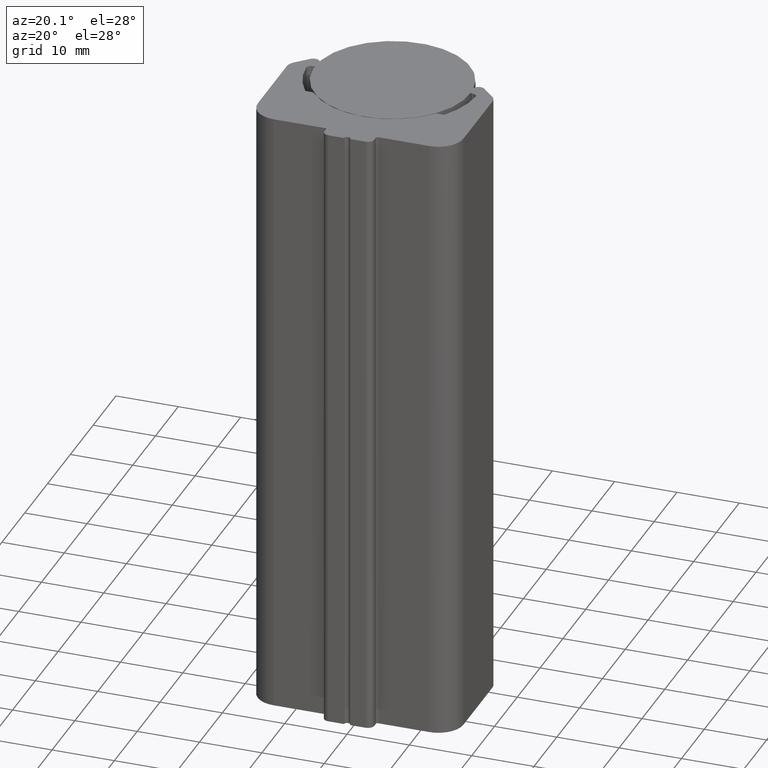
[diagram: clean part render]
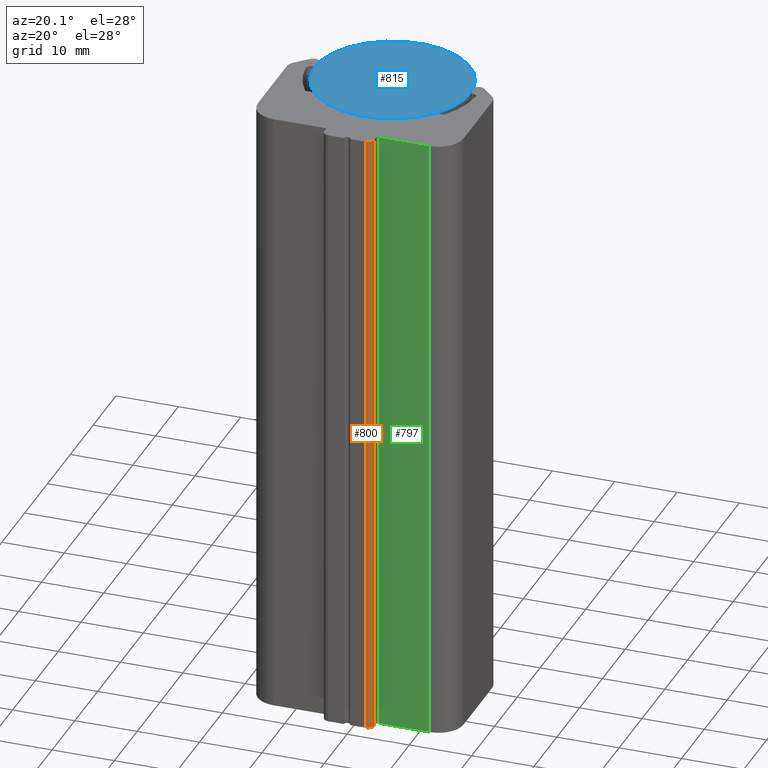
[diagram: same view with three faces highlighted in distinct colors, each labeled with its STEP entity id]
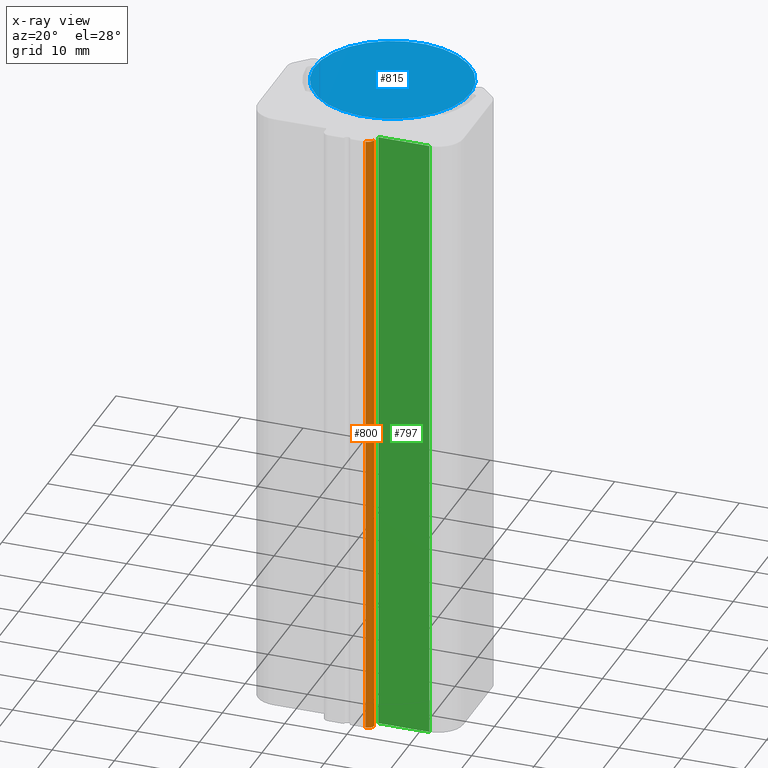
[diagram: x-ray of the same camera — body ghosted, the three highlighted faces saturated]
A machine part, auxiliary view with three faces highlighted in distinct colors.
The next image is the same camera in x-ray (body ghosted, the three faces saturated) — at least one of them is partly hidden behind the body in this view.
Their STEP definitions:

[orange] entity #800 — the highlighted cylindrical surface (edge-blend (fillet) strip) has radius 1 mm, axis along (0, 0, 1).
#43=CYLINDRICAL_SURFACE('',#947,1.);
#77=FACE_OUTER_BOUND('',#120,.T.);
#120=EDGE_LOOP('',(#661,#662,#663,#664));
#152=CIRCLE('',#899,1.);
#174=CIRCLE('',#948,1.);
#234=LINE('',#1417,#305);
#235=LINE('',#1421,#306);
#305=VECTOR('',#1160,10.);
#306=VECTOR('',#1165,10.);
#351=VERTEX_POINT('',#1289);
#352=VERTEX_POINT('',#1291);
#388=VERTEX_POINT('',#1415);
#389=VERTEX_POINT('',#1419);
#429=EDGE_CURVE('',#351,#352,#152,.T.);
#492=EDGE_CURVE('',#351,#388,#234,.T.);
#493=EDGE_CURVE('',#389,#388,#174,.T.);
#494=EDGE_CURVE('',#352,#389,#235,.T.);
#661=ORIENTED_EDGE('',*,*,#492,.T.);
#662=ORIENTED_EDGE('',*,*,#493,.F.);
#663=ORIENTED_EDGE('',*,*,#494,.F.);
#664=ORIENTED_EDGE('',*,*,#429,.F.);
#800=ADVANCED_FACE('',(#77),#43,.T.);
#899=AXIS2_PLACEMENT_3D('',#1292,#1023,#1024);
#947=AXIS2_PLACEMENT_3D('',#1418,#1161,#1162);
#948=AXIS2_PLACEMENT_3D('',#1420,#1163,#1164);
#1023=DIRECTION('center_axis',(0.,0.,-1.));
#1024=DIRECTION('ref_axis',(0.,-1.,0.));
#1160=DIRECTION('',(0.,0.,1.));
#1161=DIRECTION('center_axis',(0.,0.,1.));
#1162=DIRECTION('ref_axis',(0.,-1.,0.));
#1163=DIRECTION('center_axis',(0.,0.,1.));
#1164=DIRECTION('ref_axis',(0.,-1.,0.));
#1165=DIRECTION('',(0.,0.,1.));
#1289=CARTESIAN_POINT('',(4.0000000000001,-19.,-50.));
#1291=CARTESIAN_POINT('',(3.00000000000018,-19.9999999999999,-50.));
#1292=CARTESIAN_POINT('Origin',(3.00000000000018,-19.,-50.));
#1415=CARTESIAN_POINT('',(4.0000000000001,-19.,50.));
#1417=CARTESIAN_POINT('',(4.0000000000001,-19.,0.));
#1418=CARTESIAN_POINT('Origin',(3.00000000000018,-19.,0.));
#1419=CARTESIAN_POINT('',(3.00000000000018,-19.9999999999999,50.));
#1420=CARTESIAN_POINT('Origin',(3.00000000000018,-19.,50.));
#1421=CARTESIAN_POINT('',(3.00000000000018,-19.9999999999999,0.));

[blue] entity #815 — the highlighted planar face has unit normal (0, 0, 1).
#92=FACE_OUTER_BOUND('',#135,.T.);
#135=EDGE_LOOP('',(#752));
#181=CIRCLE('',#970,12.5);
#401=VERTEX_POINT('',#1470);
#517=EDGE_CURVE('',#401,#401,#181,.T.);
#752=ORIENTED_EDGE('',*,*,#517,.T.);
#772=PLANE('',#971);
#815=ADVANCED_FACE('',(#92),#772,.T.);
#970=AXIS2_PLACEMENT_3D('',#1471,#1224,#1225);
#971=AXIS2_PLACEMENT_3D('',#1473,#1227,#1228);
#1224=DIRECTION('center_axis',(0.,0.,1.));
#1225=DIRECTION('ref_axis',(-1.,0.,0.));
#1227=DIRECTION('center_axis',(0.,0.,1.));
#1228=DIRECTION('ref_axis',(1.,0.,0.));
#1470=CARTESIAN_POINT('',(12.5,1.53080849893419E-15,50.));
#1471=CARTESIAN_POINT('Origin',(0.,0.,50.));
#1473=CARTESIAN_POINT('Origin',(-7.19686321377933E-16,-2.96059473233375E-16,
50.));

[green] entity #797 — the highlighted planar face has unit normal (0, -1, 0).
#74=FACE_OUTER_BOUND('',#117,.T.);
#117=EDGE_LOOP('',(#649,#650,#651,#652));
#191=LINE('',#1286,#262);
#229=LINE('',#1405,#300);
#230=LINE('',#1408,#301);
#231=LINE('',#1409,#302);
#262=VECTOR('',#1019,10.);
#300=VECTOR('',#1147,10.);
#301=VECTOR('',#1150,10.);
#302=VECTOR('',#1151,10.);
#348=VERTEX_POINT('',#1283);
#349=VERTEX_POINT('',#1285);
#385=VERTEX_POINT('',#1403);
#386=VERTEX_POINT('',#1407);
#426=EDGE_CURVE('',#348,#349,#191,.T.);
#486=EDGE_CURVE('',#348,#385,#229,.T.);
#487=EDGE_CURVE('',#386,#385,#230,.T.);
#488=EDGE_CURVE('',#349,#386,#231,.T.);
#649=ORIENTED_EDGE('',*,*,#486,.T.);
#650=ORIENTED_EDGE('',*,*,#487,.F.);
#651=ORIENTED_EDGE('',*,*,#488,.F.);
#652=ORIENTED_EDGE('',*,*,#426,.F.);
#762=PLANE('',#943);
#797=ADVANCED_FACE('',(#74),#762,.T.);
#943=AXIS2_PLACEMENT_3D('',#1406,#1148,#1149);
#1019=DIRECTION('',(-1.,-2.70786103567113E-16,0.));
#1147=DIRECTION('',(0.,0.,1.));
#1148=DIRECTION('center_axis',(2.70786103567113E-16,-1.,0.));
#1149=DIRECTION('ref_axis',(1.,2.70786103567113E-16,0.));
#1150=DIRECTION('',(1.,2.70786103567113E-16,0.));
#1151=DIRECTION('',(0.,0.,1.));
#1283=CARTESIAN_POINT('',(12.5000000000001,-18.0000000000001,-50.));
#1285=CARTESIAN_POINT('',(4.3000000000001,-18.0000000000001,-50.));
#1286=CARTESIAN_POINT('',(4.3000000000001,-18.0000000000001,-50.));
#1403=CARTESIAN_POINT('',(12.5000000000001,-18.0000000000001,50.));
#1405=CARTESIAN_POINT('',(12.5000000000001,-18.0000000000001,0.));
#1406=CARTESIAN_POINT('Origin',(4.3000000000001,-18.0000000000001,0.));
#1407=CARTESIAN_POINT('',(4.3000000000001,-18.0000000000001,50.));
#1408=CARTESIAN_POINT('',(4.3000000000001,-18.0000000000001,50.));
#1409=CARTESIAN_POINT('',(4.3000000000001,-18.0000000000001,0.));